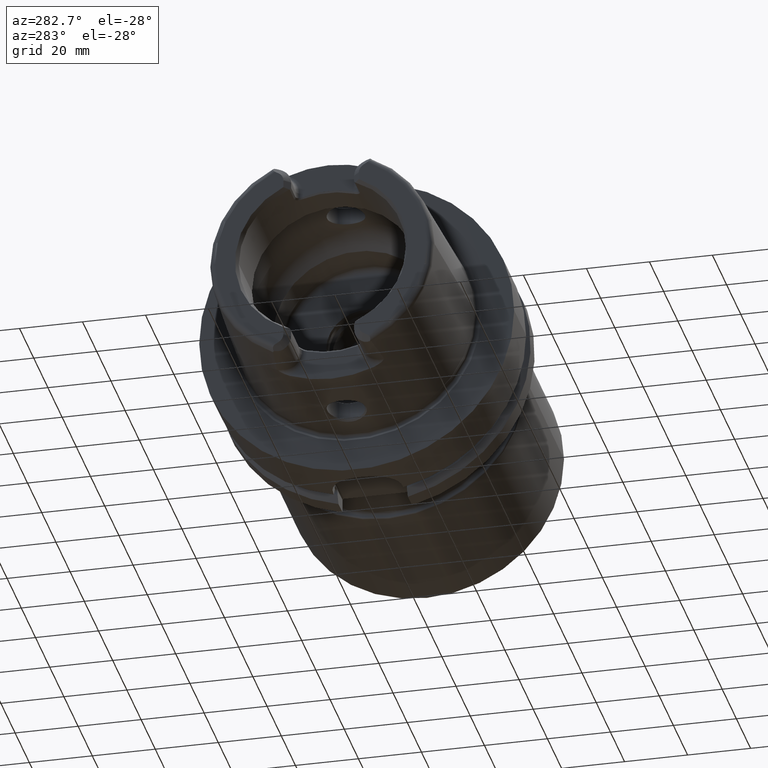
[diagram: clean part render]
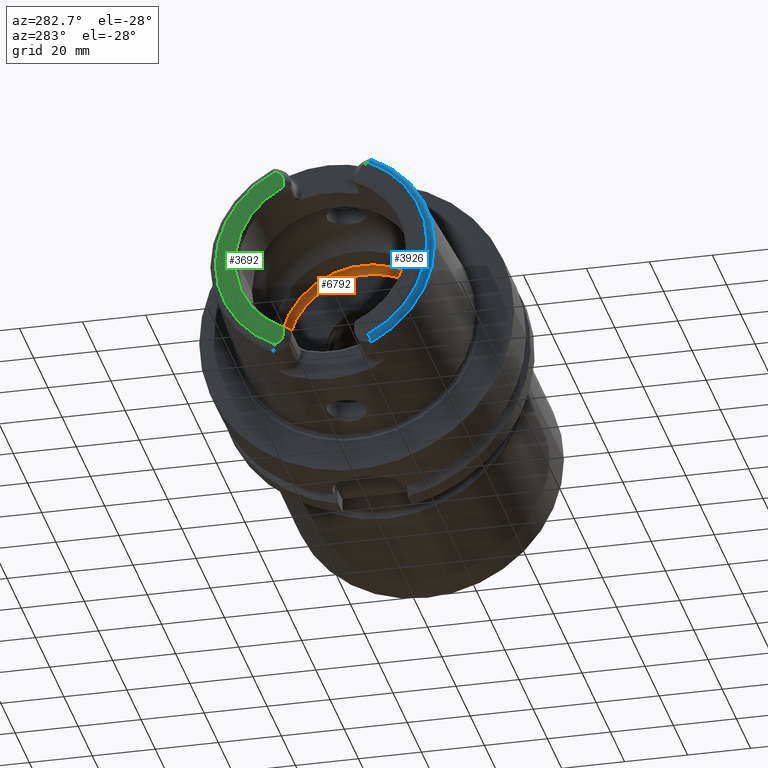
[diagram: same view with three faces highlighted in distinct colors, each labeled with its STEP entity id]
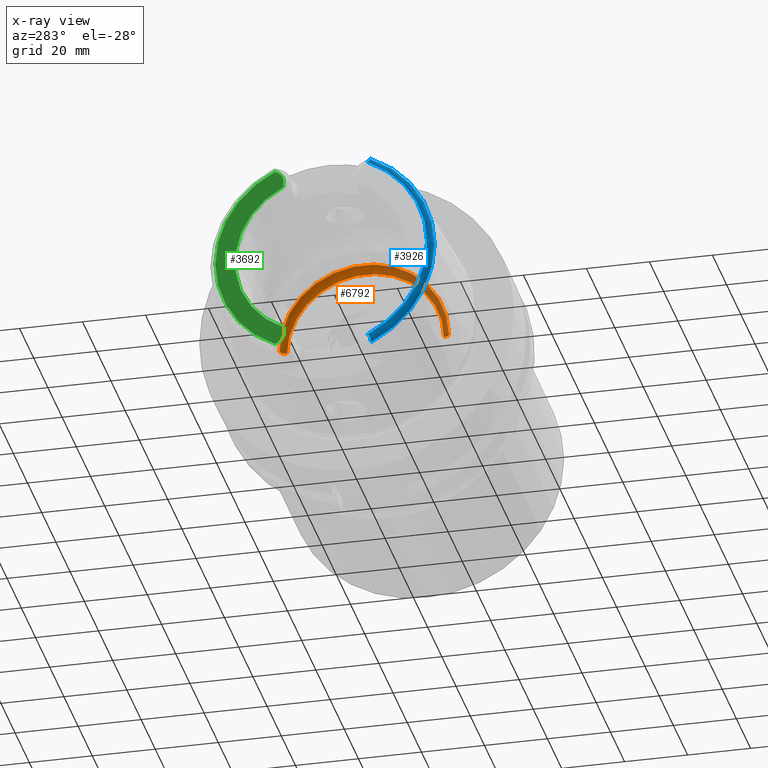
[diagram: x-ray of the same camera — body ghosted, the three highlighted faces saturated]
A machine part, auxiliary view with three faces highlighted in distinct colors.
The next image is the same camera in x-ray (body ghosted, the three faces saturated) — at least one of them is partly hidden behind the body in this view.
Their STEP definitions:

[orange] entity #6792 — the highlighted toroidal blend (fillet) surface has major radius 24.9 mm and minor (blend) radius 2 mm.
#2601=CARTESIAN_POINT('',(9.3E0,0.E0,0.E0));
#2602=DIRECTION('',(1.E0,0.E0,0.E0));
#2603=DIRECTION('',(0.E0,1.E0,0.E0));
#2604=AXIS2_PLACEMENT_3D('',#2601,#2602,#2603);
#2606=CARTESIAN_POINT('',(1.25E1,0.E0,0.E0));
#2607=DIRECTION('',(1.E0,0.E0,0.E0));
#2608=DIRECTION('',(0.E0,1.E0,0.E0));
#2609=AXIS2_PLACEMENT_3D('',#2606,#2607,#2608);
#2611=CARTESIAN_POINT('',(1.05E1,2.49E1,0.E0));
#2612=DIRECTION('',(0.E0,0.E0,1.E0));
#2613=DIRECTION('',(1.E0,0.E0,0.E0));
#2614=AXIS2_PLACEMENT_3D('',#2611,#2612,#2613);
#2621=CARTESIAN_POINT('',(1.05E1,-2.49E1,0.E0));
#2622=DIRECTION('',(0.E0,0.E0,-1.E0));
#2623=DIRECTION('',(1.E0,0.E0,0.E0));
#2624=AXIS2_PLACEMENT_3D('',#2621,#2622,#2623);
#3071=CARTESIAN_POINT('',(1.25E1,2.49E1,0.E0));
#3072=CARTESIAN_POINT('',(9.3E0,2.65E1,0.E0));
#3073=VERTEX_POINT('',#3071);
#3074=VERTEX_POINT('',#3072);
#3075=CARTESIAN_POINT('',(1.25E1,-2.49E1,0.E0));
#3076=CARTESIAN_POINT('',(9.3E0,-2.65E1,0.E0));
#3077=VERTEX_POINT('',#3075);
#3078=VERTEX_POINT('',#3076);
#6778=CARTESIAN_POINT('',(1.05E1,0.E0,0.E0));
#6779=DIRECTION('',(1.E0,0.E0,0.E0));
#6780=DIRECTION('',(0.E0,-1.E0,0.E0));
#6781=AXIS2_PLACEMENT_3D('',#6778,#6779,#6780);
#6782=TOROIDAL_SURFACE('',#6781,2.49E1,2.E0);
#6784=ORIENTED_EDGE('',*,*,#6783,.T.);
#6785=ORIENTED_EDGE('',*,*,#6773,.T.);
#6787=ORIENTED_EDGE('',*,*,#6786,.F.);
#6789=ORIENTED_EDGE('',*,*,#6788,.F.);
#6790=EDGE_LOOP('',(#6784,#6785,#6787,#6789));
#6791=FACE_OUTER_BOUND('',#6790,.F.);
#6792=ADVANCED_FACE('',(#6791),#6782,.F.);
#2605=CIRCLE('',#2604,2.65E1);
#2610=CIRCLE('',#2609,2.49E1);
#2615=CIRCLE('',#2614,2.E0);
#2625=CIRCLE('',#2624,2.E0);
#6773=EDGE_CURVE('',#3074,#3078,#2605,.T.);
#6783=EDGE_CURVE('',#3073,#3074,#2615,.T.);
#6786=EDGE_CURVE('',#3077,#3078,#2625,.T.);
#6788=EDGE_CURVE('',#3073,#3077,#2610,.T.);

[blue] entity #3926 — the highlighted toroidal blend (fillet) surface has major radius 33.6002 mm and minor (blend) radius 2 mm.
#345=CARTESIAN_POINT('',(-5.E1,-1.463423248617E1,-3.024586108239E1));
#346=CARTESIAN_POINT('',(-5.E1,-1.470887052533E1,-3.029145183695E1));
#347=CARTESIAN_POINT('',(-4.999193668301E1,-1.484929336697E1,
-3.038667413649E1));
#348=CARTESIAN_POINT('',(-4.995488930905E1,-1.503385996795E1,
-3.054282394569E1));
#349=CARTESIAN_POINT('',(-4.989197500232E1,-1.518921649175E1,
-3.071144229779E1));
#350=CARTESIAN_POINT('',(-4.980215470263E1,-1.531145218524E1,
-3.089135797532E1));
#351=CARTESIAN_POINT('',(-4.968951481558E1,-1.539498007461E1,
-3.107436988164E1));
#352=CARTESIAN_POINT('',(-4.955280820452E1,-1.544064650585E1,
-3.126245637594E1));
#353=CARTESIAN_POINT('',(-4.939976008409E1,-1.544677878772E1,
-3.144554335861E1));
#354=CARTESIAN_POINT('',(-4.923056226109E1,-1.541582067272E1,
-3.162489877544E1));
#355=CARTESIAN_POINT('',(-4.904873698401E1,-1.534905210810E1,
-3.179717709171E1));
#356=CARTESIAN_POINT('',(-4.892028850269E1,-1.528176328722E1,
-3.190659088650E1));
#357=CARTESIAN_POINT('',(-4.885415732441E1,-1.524233599545E1,-3.196E1));
#359=CARTESIAN_POINT('',(-5.E1,0.E0,0.E0));
#360=DIRECTION('',(-1.E0,0.E0,0.E0));
#361=DIRECTION('',(0.E0,-4.355401503799E-1,-9.001693048572E-1));
#362=AXIS2_PLACEMENT_3D('',#359,#360,#361);
#364=CARTESIAN_POINT('',(-4.885415732441E1,-1.524233599545E1,3.196E1));
#365=CARTESIAN_POINT('',(-4.892042682917E1,-1.528184575722E1,3.190647917074E1));
#366=CARTESIAN_POINT('',(-4.904907337055E1,-1.534921107261E1,3.179688001462E1));
#367=CARTESIAN_POINT('',(-4.923089295558E1,-1.541590864687E1,3.162456500561E1));
#368=CARTESIAN_POINT('',(-4.939996141290E1,-1.544678596655E1,3.144531182725E1));
#369=CARTESIAN_POINT('',(-4.955291678113E1,-1.544062482823E1,3.126231590503E1));
#370=CARTESIAN_POINT('',(-4.968961398491E1,-1.539492909283E1,3.107422253444E1));
#371=CARTESIAN_POINT('',(-4.980222556701E1,-1.531137807264E1,3.089122966690E1));
#372=CARTESIAN_POINT('',(-4.98920182E1,-1.518913217588E1,3.071134017670E1));
#373=CARTESIAN_POINT('',(-4.995490319930E1,-1.503380242251E1,3.054277251898E1));
#374=CARTESIAN_POINT('',(-4.999193874033E1,-1.484926520259E1,3.038665452223E1));
#375=CARTESIAN_POINT('',(-5.E1,-1.470886141623E1,3.029144627288E1));
#376=CARTESIAN_POINT('',(-5.E1,-1.463423248617E1,3.024586108239E1));
#378=CARTESIAN_POINT('',(-4.810007448473E1,-1.567653238626E1,3.196E1));
#379=CARTESIAN_POINT('',(-4.814854926161E1,-1.567101764283E1,3.196E1));
#380=CARTESIAN_POINT('',(-4.824699718528E1,-1.565188578280E1,3.196E1));
#381=CARTESIAN_POINT('',(-4.840101233225E1,-1.559467216883E1,3.196E1));
#382=CARTESIAN_POINT('',(-4.855439166438E1,-1.550852477714E1,3.196E1));
#383=CARTESIAN_POINT('',(-4.870516089830E1,-1.539385143023E1,3.196E1));
#384=CARTESIAN_POINT('',(-4.880487439669E1,-1.529641023181E1,3.196E1));
#385=CARTESIAN_POINT('',(-4.885415732441E1,-1.524233599545E1,3.196E1));
#387=CARTESIAN_POINT('',(-4.810007448473E1,0.E0,0.E0));
#388=DIRECTION('',(1.E0,0.E0,0.E0));
#389=DIRECTION('',(0.E0,-4.403806547453E-1,8.978111599474E-1));
#390=AXIS2_PLACEMENT_3D('',#387,#388,#389);
#392=CARTESIAN_POINT('',(-4.810007448473E1,0.E0,0.E0));
#393=DIRECTION('',(-1.E0,0.E0,0.E0));
#394=DIRECTION('',(0.E0,-4.403806547453E-1,-8.978111599474E-1));
#395=AXIS2_PLACEMENT_3D('',#392,#393,#394);
#397=CARTESIAN_POINT('',(-4.885415732441E1,-1.524233599545E1,-3.196E1));
#398=CARTESIAN_POINT('',(-4.880489671373E1,-1.529638574510E1,-3.196E1));
#399=CARTESIAN_POINT('',(-4.870522589790E1,-1.539380534287E1,-3.196E1));
#400=CARTESIAN_POINT('',(-4.855425205604E1,-1.550861743949E1,-3.196E1));
#401=CARTESIAN_POINT('',(-4.840102922174E1,-1.559466231398E1,-3.196E1));
#402=CARTESIAN_POINT('',(-4.824685927015E1,-1.565193052527E1,-3.196E1));
#403=CARTESIAN_POINT('',(-4.814849310230E1,-1.567102403180E1,-3.196E1));
#404=CARTESIAN_POINT('',(-4.810007448473E1,-1.567653238626E1,-3.196E1));
#3065=CARTESIAN_POINT('',(-4.810007448473E1,-3.559768626831E1,0.E0));
#3066=VERTEX_POINT('',#3065);
#3105=CARTESIAN_POINT('',(-4.810007448473E1,-1.567653238626E1,3.196E1));
#3106=VERTEX_POINT('',#3105);
#3152=CARTESIAN_POINT('',(-5.E1,-1.463423248617E1,3.024586108239E1));
#3153=VERTEX_POINT('',#3152);
#3154=VERTEX_POINT('',#364);
#3185=CARTESIAN_POINT('',(-4.810007448473E1,-1.567653238626E1,-3.196E1));
#3186=VERTEX_POINT('',#3185);
#3245=CARTESIAN_POINT('',(-5.E1,-1.463423248617E1,-3.024586108239E1));
#3246=VERTEX_POINT('',#3245);
#3247=VERTEX_POINT('',#357);
#3909=CARTESIAN_POINT('',(-4.8E1,0.E0,0.E0));
#3910=DIRECTION('',(1.E0,0.E0,0.E0));
#3911=DIRECTION('',(0.E0,-1.E0,0.E0));
#3912=AXIS2_PLACEMENT_3D('',#3909,#3910,#3911);
#3913=TOROIDAL_SURFACE('',#3912,3.360019156306E1,2.E0);
#3915=ORIENTED_EDGE('',*,*,#3914,.F.);
#3916=ORIENTED_EDGE('',*,*,#3707,.T.);
#3917=ORIENTED_EDGE('',*,*,#3664,.F.);
#3918=ORIENTED_EDGE('',*,*,#3647,.F.);
#3919=ORIENTED_EDGE('',*,*,#3624,.T.);
#3921=ORIENTED_EDGE('',*,*,#3920,.F.);
#3923=ORIENTED_EDGE('',*,*,#3922,.F.);
#3924=EDGE_LOOP('',(#3915,#3916,#3917,#3918,#3919,#3921,#3923));
#3925=FACE_OUTER_BOUND('',#3924,.F.);
#3926=ADVANCED_FACE('',(#3925),#3913,.T.);
#358=B_SPLINE_CURVE_WITH_KNOTS('',3,(#345,#346,#347,#348,#349,#350,#351,#352,
#353,#354,#355,#356,#357),.UNSPECIFIED.,.F.,.F.,(4,1,1,1,1,1,1,1,1,1,4),(0.E0,
1.E-1,2.E-1,3.E-1,4.E-1,5.E-1,6.E-1,7.E-1,8.E-1,9.E-1,1.E0),.UNSPECIFIED.);
#363=CIRCLE('',#362,3.360019156306E1);
#377=B_SPLINE_CURVE_WITH_KNOTS('',3,(#364,#365,#366,#367,#368,#369,#370,#371,
#372,#373,#374,#375,#376),.UNSPECIFIED.,.F.,.F.,(4,1,1,1,1,1,1,1,1,1,4),(0.E0,
1.E-1,2.E-1,3.E-1,4.E-1,5.E-1,6.E-1,7.E-1,8.E-1,9.E-1,1.E0),.UNSPECIFIED.);
#386=B_SPLINE_CURVE_WITH_KNOTS('',3,(#378,#379,#380,#381,#382,#383,#384,#385),
.UNSPECIFIED.,.F.,.F.,(4,1,1,1,1,4),(0.E0,2.E-1,4.E-1,6.E-1,8.E-1,1.E0),
.UNSPECIFIED.);
#391=CIRCLE('',#390,3.559768626831E1);
#396=CIRCLE('',#395,3.559768626831E1);
#405=B_SPLINE_CURVE_WITH_KNOTS('',3,(#397,#398,#399,#400,#401,#402,#403,#404),
.UNSPECIFIED.,.F.,.F.,(4,1,1,1,1,4),(0.E0,2.E-1,4.E-1,6.E-1,8.E-1,1.E0),
.UNSPECIFIED.);
#3624=EDGE_CURVE('',#3106,#3066,#391,.T.);
#3647=EDGE_CURVE('',#3106,#3154,#386,.T.);
#3664=EDGE_CURVE('',#3154,#3153,#377,.T.);
#3707=EDGE_CURVE('',#3246,#3153,#363,.T.);
#3914=EDGE_CURVE('',#3246,#3247,#358,.T.);
#3920=EDGE_CURVE('',#3186,#3066,#396,.T.);
#3922=EDGE_CURVE('',#3247,#3186,#405,.T.);

[green] entity #3692 — the highlighted planar face has unit normal (1, 0, 0).
#100=DIRECTION('',(0.E0,0.E0,1.E0));
#101=VECTOR('',#100,2.370180025047E0);
#102=CARTESIAN_POINT('',(-5.E1,1.201E1,-2.696E1));
#103=LINE('',#102,#101);
#104=CARTESIAN_POINT('',(-5.E1,1.501E1,-2.696E1));
#105=DIRECTION('',(1.E0,0.E0,0.E0));
#106=DIRECTION('',(0.E0,-1.E0,0.E0));
#107=AXIS2_PLACEMENT_3D('',#104,#105,#106);
#109=DIRECTION('',(0.E0,-8.533905854017E-1,5.212720103245E-1));
#110=VECTOR('',#109,1.392150953463E0);
#111=CARTESIAN_POINT('',(-5.E1,1.463423248617E1,-3.024586108239E1));
#112=LINE('',#111,#110);
#113=DIRECTION('',(0.E0,-8.533905854017E-1,-5.212720103245E-1));
#114=VECTOR('',#113,1.392150953463E0);
#115=CARTESIAN_POINT('',(-5.E1,1.463423248617E1,3.024586108239E1));
#116=LINE('',#115,#114);
#117=CARTESIAN_POINT('',(-5.E1,1.501E1,2.696E1));
#118=DIRECTION('',(-1.E0,0.E0,0.E0));
#119=DIRECTION('',(0.E0,-1.E0,0.E0));
#120=AXIS2_PLACEMENT_3D('',#117,#118,#119);
#122=DIRECTION('',(0.E0,0.E0,1.E0));
#123=VECTOR('',#122,2.370180025047E0);
#124=CARTESIAN_POINT('',(-5.E1,1.201E1,2.458981997495E1));
#125=LINE('',#124,#123);
#157=CARTESIAN_POINT('',(-5.E1,0.E0,0.E0));
#158=DIRECTION('',(1.E0,0.E0,0.E0));
#159=DIRECTION('',(0.E0,4.388653384185E-1,-8.985528447091E-1));
#160=AXIS2_PLACEMENT_3D('',#157,#158,#159);
#340=CARTESIAN_POINT('',(-5.E1,0.E0,0.E0));
#341=DIRECTION('',(-1.E0,0.E0,0.E0));
#342=DIRECTION('',(0.E0,4.355401503799E-1,9.001693048572E-1));
#343=AXIS2_PLACEMENT_3D('',#340,#341,#342);
#3129=CARTESIAN_POINT('',(-5.E1,1.201E1,2.458981997495E1));
#3130=CARTESIAN_POINT('',(-5.E1,1.201E1,2.696E1));
#3131=VERTEX_POINT('',#3129);
#3132=VERTEX_POINT('',#3130);
#3133=CARTESIAN_POINT('',(-5.E1,1.344618396903E1,2.952017175621E1));
#3134=VERTEX_POINT('',#3133);
#3135=CARTESIAN_POINT('',(-5.E1,1.463423248617E1,3.024586108239E1));
#3136=VERTEX_POINT('',#3135);
#3220=CARTESIAN_POINT('',(-5.E1,1.201E1,-2.696E1));
#3221=CARTESIAN_POINT('',(-5.E1,1.201E1,-2.458981997495E1));
#3222=VERTEX_POINT('',#3220);
#3223=VERTEX_POINT('',#3221);
#3224=CARTESIAN_POINT('',(-5.E1,1.344618396903E1,-2.952017175621E1));
#3225=VERTEX_POINT('',#3224);
#3226=CARTESIAN_POINT('',(-5.E1,1.463423248617E1,-3.024586108239E1));
#3227=VERTEX_POINT('',#3226);
#3669=CARTESIAN_POINT('',(-5.E1,0.E0,0.E0));
#3670=DIRECTION('',(1.E0,0.E0,0.E0));
#3671=DIRECTION('',(0.E0,-1.E0,0.E0));
#3672=AXIS2_PLACEMENT_3D('',#3669,#3670,#3671);
#3673=PLANE('',#3672);
#3675=ORIENTED_EDGE('',*,*,#3674,.F.);
#3677=ORIENTED_EDGE('',*,*,#3676,.T.);
#3679=ORIENTED_EDGE('',*,*,#3678,.F.);
#3681=ORIENTED_EDGE('',*,*,#3680,.F.);
#3683=ORIENTED_EDGE('',*,*,#3682,.T.);
#3685=ORIENTED_EDGE('',*,*,#3684,.F.);
#3687=ORIENTED_EDGE('',*,*,#3686,.F.);
#3689=ORIENTED_EDGE('',*,*,#3688,.F.);
#3690=EDGE_LOOP('',(#3675,#3677,#3679,#3681,#3683,#3685,#3687,#3689));
#3691=FACE_OUTER_BOUND('',#3690,.F.);
#3692=ADVANCED_FACE('',(#3691),#3673,.F.);
#108=CIRCLE('',#107,3.E0);
#121=CIRCLE('',#120,3.E0);
#161=CIRCLE('',#160,2.736602540378E1);
#344=CIRCLE('',#343,3.360019156306E1);
#3674=EDGE_CURVE('',#3222,#3223,#103,.T.);
#3676=EDGE_CURVE('',#3222,#3225,#108,.T.);
#3678=EDGE_CURVE('',#3227,#3225,#112,.T.);
#3680=EDGE_CURVE('',#3136,#3227,#344,.T.);
#3682=EDGE_CURVE('',#3136,#3134,#116,.T.);
#3684=EDGE_CURVE('',#3132,#3134,#121,.T.);
#3686=EDGE_CURVE('',#3131,#3132,#125,.T.);
#3688=EDGE_CURVE('',#3223,#3131,#161,.T.);